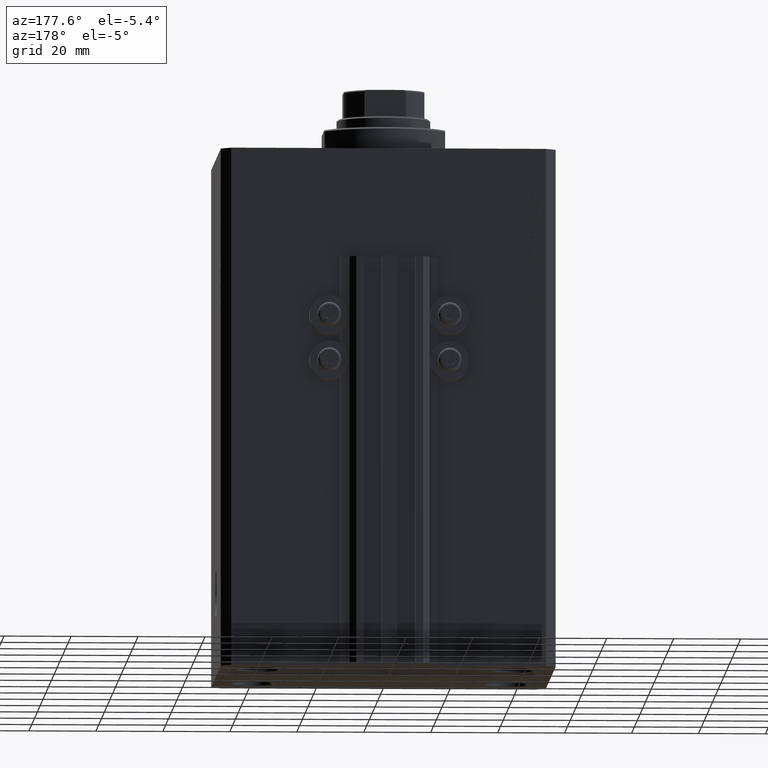
[diagram: clean part render]
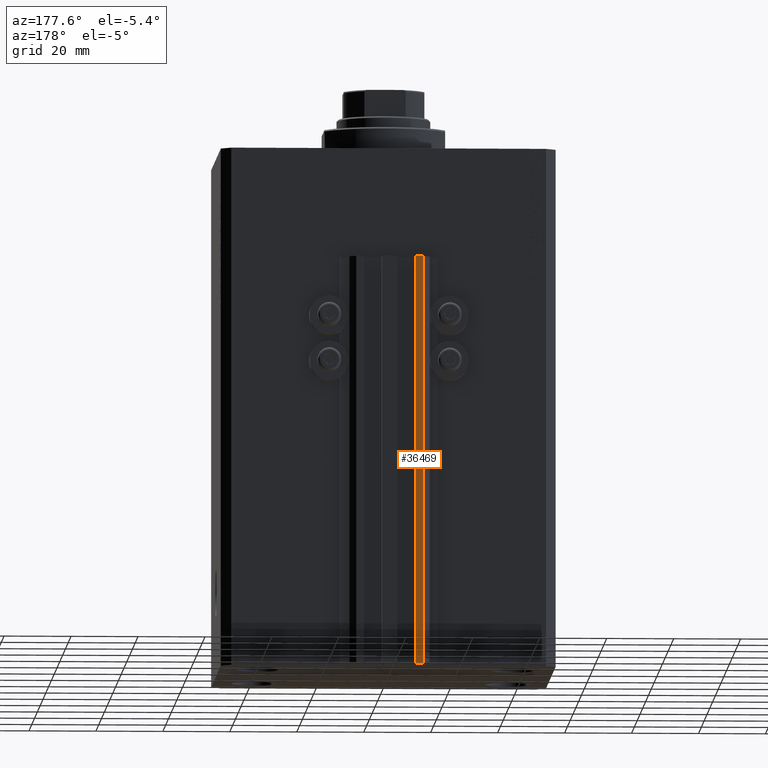
[diagram: same view with one face highlighted and labeled with its STEP entity id]
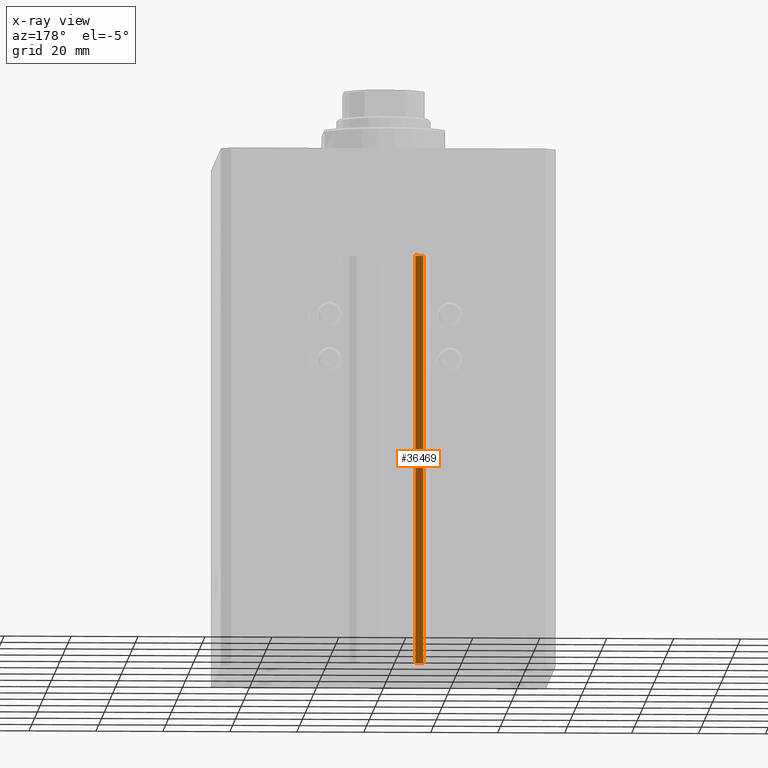
[diagram: x-ray of the same camera — body ghosted, the highlighted face saturated]
A machine part, auxiliary view. The second image highlights one B-rep face of the part: STEP entity #36469.
The next image is the same camera in x-ray: the body ghosted, the highlighted face saturated — about 0% of this face is hidden behind the body in this view.
In plain terms, the highlighted planar face has unit normal (0, 1, 0).
Its self-contained STEP definition (entity closure, byte-faithful):
#736 = CARTESIAN_POINT ( 'NONE',  ( -7.650000000000002132, 45.49999999999999289, -33.00000000000000000 ) ) ;
#2307 = VECTOR ( 'NONE', #2796, 1000.000000000000000 ) ;
#2364 = PLANE ( 'NONE',  #18254 ) ;
#2796 = DIRECTION ( 'NONE',  ( 0.000000000000000000, 0.000000000000000000, 1.000000000000000000 ) ) ;
#4641 = EDGE_CURVE ( 'NONE', #27935, #23818, #10926, .T. ) ;
#5533 = ORIENTED_EDGE ( 'NONE', *, *, #31942, .F. ) ;
#6693 = LINE ( 'NONE', #13392, #32082 ) ;
#6871 = CARTESIAN_POINT ( 'NONE',  ( -7.650000000000002132, 45.49999999999999289, -155.0000000000000000 ) ) ;
#7458 = VECTOR ( 'NONE', #46979, 1000.000000000000000 ) ;
#8300 = EDGE_LOOP ( 'NONE', ( #5533, #9279, #45516, #20846 ) ) ;
#9048 = DIRECTION ( 'NONE',  ( 0.000000000000000000, 1.000000000000000000, -0.000000000000000000 ) ) ;
#9279 = ORIENTED_EDGE ( 'NONE', *, *, #4641, .F. ) ;
#10926 = LINE ( 'NONE', #6871, #7458 ) ;
#12744 = VERTEX_POINT ( 'NONE', #42717 ) ;
#13392 = CARTESIAN_POINT ( 'NONE',  ( -7.650000000000002132, 45.49999999999999289, -155.0000000000000000 ) ) ;
#14035 = VERTEX_POINT ( 'NONE', #26577 ) ;
#15199 = VECTOR ( 'NONE', #22721, 1000.000000000000000 ) ;
#16658 = LINE ( 'NONE', #31219, #2307 ) ;
#18254 = AXIS2_PLACEMENT_3D ( 'NONE', #27439, #9048, #41998 ) ;
#20846 = ORIENTED_EDGE ( 'NONE', *, *, #33861, .T. ) ;
#22721 = DIRECTION ( 'NONE',  ( -1.000000000000000000, 0.000000000000000000, 0.000000000000000000 ) ) ;
#23818 = VERTEX_POINT ( 'NONE', #35762 ) ;
#26577 = CARTESIAN_POINT ( 'NONE',  ( -10.00000000000000000, 45.49999999999999289, -155.0000000000000000 ) ) ;
#27439 = CARTESIAN_POINT ( 'NONE',  ( -7.650000000000002132, 45.49999999999999289, -155.0000000000000000 ) ) ;
#27935 = VERTEX_POINT ( 'NONE', #28671 ) ;
#28671 = CARTESIAN_POINT ( 'NONE',  ( -7.650000000000002132, 45.49999999999999289, -155.0000000000000000 ) ) ;
#31219 = CARTESIAN_POINT ( 'NONE',  ( -10.00000000000000000, 45.49999999999999289, -155.0000000000000000 ) ) ;
#31942 = EDGE_CURVE ( 'NONE', #23818, #12744, #40391, .T. ) ;
#32082 = VECTOR ( 'NONE', #46324, 1000.000000000000000 ) ;
#33861 = EDGE_CURVE ( 'NONE', #14035, #12744, #16658, .T. ) ;
#35762 = CARTESIAN_POINT ( 'NONE',  ( -7.650000000000002132, 45.49999999999999289, -33.00000000000000000 ) ) ;
#36469 = ADVANCED_FACE ( 'NONE', ( #41529 ), #2364, .T. ) ;
#40244 = EDGE_CURVE ( 'NONE', #27935, #14035, #6693, .T. ) ;
#40391 = LINE ( 'NONE', #736, #15199 ) ;
#41529 = FACE_OUTER_BOUND ( 'NONE', #8300, .T. ) ;
#41998 = DIRECTION ( 'NONE',  ( 0.000000000000000000, 0.000000000000000000, 1.000000000000000000 ) ) ;
#42717 = CARTESIAN_POINT ( 'NONE',  ( -10.00000000000000000, 45.49999999999999289, -33.00000000000000000 ) ) ;
#45516 = ORIENTED_EDGE ( 'NONE', *, *, #40244, .T. ) ;
#46324 = DIRECTION ( 'NONE',  ( -1.000000000000000000, 0.000000000000000000, 0.000000000000000000 ) ) ;
#46979 = DIRECTION ( 'NONE',  ( 0.000000000000000000, 0.000000000000000000, 1.000000000000000000 ) ) ;